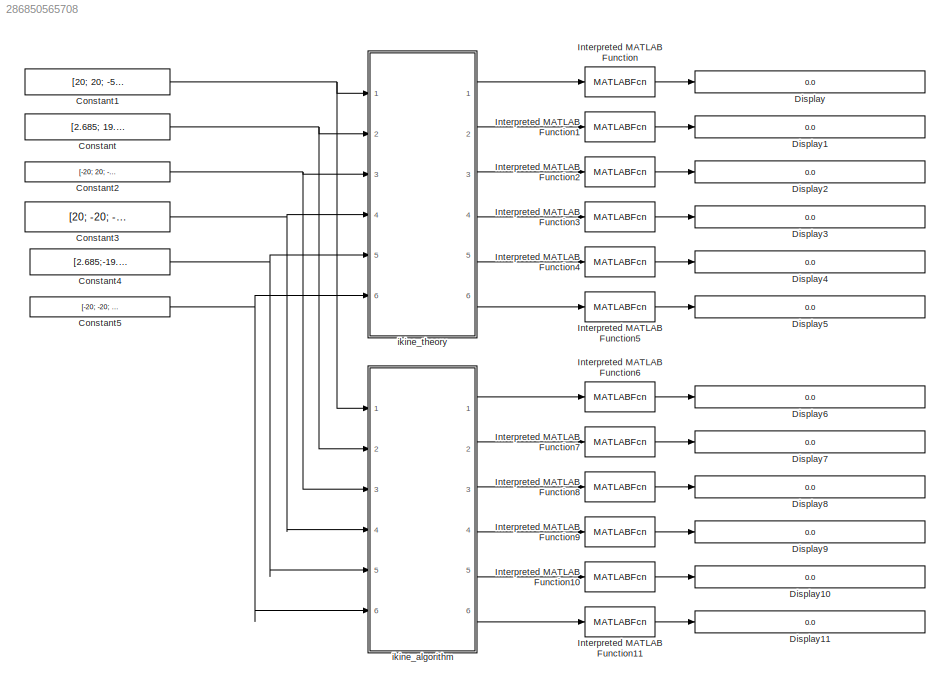
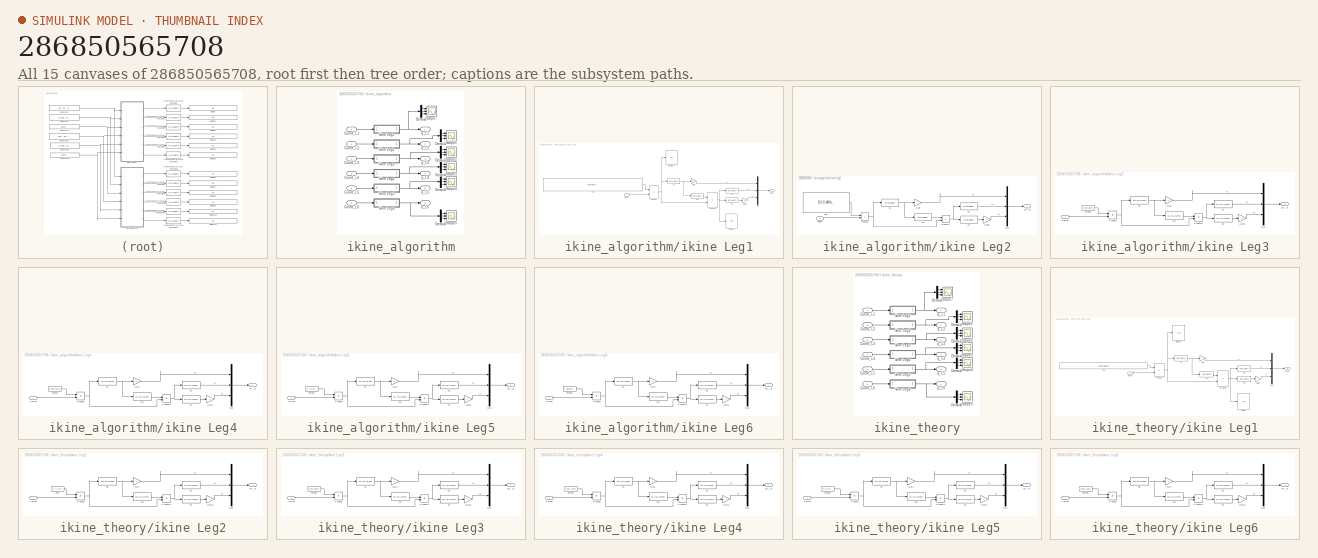
[diagram: thumbnail index - all 15 canvases of the model, root first then tree order]
MODEL slx_286850565708
KIND model
CONFIG AbsTol = auto
CONFIG EnableMultiTasking = on
CONFIG FixedStep = auto
CONFIG MaxStep = auto
CONFIG MinStep = auto
CONFIG RelTol = 1e-3
CONFIG SampleTimeConstraint = Unconstrained
CONFIG Solver = ode45
CONFIG SolverName = ode45
CONFIG StartTime = 0.0
CONFIG StopTime = 10.0
BLOCK [Constant] Constant
  Value = [2.685; 19.881; -10.46; 1]
  VectorParams1D = off
BLOCK [Constant] Constant1
  Value = [20; 20; -5; 1]
  VectorParams1D = off
BLOCK [Constant] Constant2
  Value = [-20; 20; -5; 1]
  VectorParams1D = off
BLOCK [Constant] Constant3
  Value = [20; -20; -5; 1]
  VectorParams1D = off
BLOCK [Constant] Constant4
  Value = [2.685;-19.881;-10.46;1]
  VectorParams1D = off
BLOCK [Constant] Constant5
  Value = [-20; -20; -5; 1]
  VectorParams1D = off
BLOCK [Display] Display
  Decimation = 1
  Ports = [1]
BLOCK [Display] Display1
  Decimation = 1
  Ports = [1]
BLOCK [Display] Display10
  Decimation = 1
  Ports = [1]
BLOCK [Display] Display11
  Decimation = 1
  Ports = [1]
BLOCK [Display] Display2
  Decimation = 1
  Ports = [1]
BLOCK [Display] Display3
  Decimation = 1
  Ports = [1]
BLOCK [Display] Display4
  Decimation = 1
  Ports = [1]
BLOCK [Display] Display5
  Decimation = 1
  Ports = [1]
BLOCK [Display] Display6
  Decimation = 1
  Ports = [1]
BLOCK [Display] Display7
  Decimation = 1
  Ports = [1]
BLOCK [Display] Display8
  Decimation = 1
  Ports = [1]
BLOCK [Display] Display9
  Decimation = 1
  Ports = [1]
BLOCK [MATLABFcn] Interpreted MATLAB Function
  Commented = through
  MATLABFcn = [u(1)*180/pi; u(2)*180/pi; u(3)*180/pi]
  Ports = [1, 1]
BLOCK [MATLABFcn] Interpreted MATLAB Function1
  Commented = through
  MATLABFcn = [u(1)*180/pi; u(2)*180/pi; u(3)*180/pi]
  Ports = [1, 1]
BLOCK [MATLABFcn] Interpreted MATLAB Function10
  Commented = through
  MATLABFcn = [u(1)*180/pi; u(2)*180/pi; u(3)*180/pi]
  Ports = [1, 1]
BLOCK [MATLABFcn] Interpreted MATLAB Function11
  Commented = through
  MATLABFcn = [u(1)*180/pi; u(2)*180/pi; u(3)*180/pi]
  Ports = [1, 1]
BLOCK [MATLABFcn] Interpreted MATLAB Function2
  Commented = through
  MATLABFcn = [u(1)*180/pi; u(2)*180/pi; u(3)*180/pi]
  Ports = [1, 1]
BLOCK [MATLABFcn] Interpreted MATLAB Function3
  Commented = through
  MATLABFcn = [u(1)*180/pi; u(2)*180/pi; u(3)*180/pi]
  Ports = [1, 1]
BLOCK [MATLABFcn] Interpreted MATLAB Function4
  Commented = through
  MATLABFcn = [u(1)*180/pi; u(2)*180/pi; u(3)*180/pi]
  Ports = [1, 1]
BLOCK [MATLABFcn] Interpreted MATLAB Function5
  Commented = through
  MATLABFcn = [u(1)*180/pi; u(2)*180/pi; u(3)*180/pi]
  Ports = [1, 1]
BLOCK [MATLABFcn] Interpreted MATLAB Function6
  Commented = through
  MATLABFcn = [u(1)*180/pi; u(2)*180/pi; u(3)*180/pi]
  Ports = [1, 1]
BLOCK [MATLABFcn] Interpreted MATLAB Function7
  Commented = through
  MATLABFcn = [u(1)*180/pi; u(2)*180/pi; u(3)*180/pi]
  Ports = [1, 1]
BLOCK [MATLABFcn] Interpreted MATLAB Function8
  Commented = through
  MATLABFcn = [u(1)*180/pi; u(2)*180/pi; u(3)*180/pi]
  Ports = [1, 1]
BLOCK [MATLABFcn] Interpreted MATLAB Function9
  Commented = through
  MATLABFcn = [u(1)*180/pi; u(2)*180/pi; u(3)*180/pi]
  Ports = [1, 1]
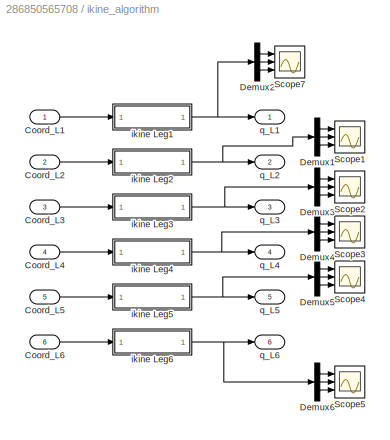
BLOCK [SubSystem] ikine_algorithm
  Ports = [6, 6]
  RequestExecContextInheritance = off
BLOCK [Inport] ikine_algorithm/Coord_L1
  IconDisplay = Port number
BLOCK [Inport] ikine_algorithm/Coord_L2
  IconDisplay = Port number
  Port = 2
BLOCK [Inport] ikine_algorithm/Coord_L3
  IconDisplay = Port number
  Port = 3
BLOCK [Inport] ikine_algorithm/Coord_L4
  IconDisplay = Port number
  Port = 4
BLOCK [Inport] ikine_algorithm/Coord_L5
  IconDisplay = Port number
  Port = 5
BLOCK [Inport] ikine_algorithm/Coord_L6
  IconDisplay = Port number
  Port = 6
BLOCK [Demux] ikine_algorithm/Demux1
  DisplayOption = bar
  Outputs = 3
  Ports = [1, 3]
BLOCK [Demux] ikine_algorithm/Demux2
  DisplayOption = bar
  Outputs = 3
  Ports = [1, 3]
BLOCK [Demux] ikine_algorithm/Demux3
  DisplayOption = bar
  Outputs = 3
  Ports = [1, 3]
BLOCK [Demux] ikine_algorithm/Demux4
  DisplayOption = bar
  Outputs = 3
  Ports = [1, 3]
BLOCK [Demux] ikine_algorithm/Demux5
  DisplayOption = bar
  Outputs = 3
  Ports = [1, 3]
BLOCK [Demux] ikine_algorithm/Demux6
  DisplayOption = bar
  Outputs = 3
  Ports = [1, 3]
BLOCK [Scope] ikine_algorithm/Scope1
  Floating = off
  NumInputPorts = 3
  Ports = [3]
  ScopeSpecificationString = C++SS(StrPVP('Location','[1, 48, 1921, 1039]'),StrPVP('Open','off'),MxPVP('AxesTitles',54,'struct(''axes1'',''%<SignalLabel>'',''axes2'',''%<SignalLabel>'',''axes3'',''%<SignalLabel>'')'),MxPVP('ScopeGraphics',57,'struct(''FigureColor'',''[0.831372549019608 0.815686274509804 0.784313725490196]'',''AxesColor'',''[1 1 1]'',''AxesTickColor'',''[0 0 0]'',''LineColors'',''[0 0 0;1 0 1;0 1 1;1 0 0;0 1 0...<+345ch>
BLOCK [Scope] ikine_algorithm/Scope2
  Floating = off
  NumInputPorts = 3
  Ports = [3]
  ScopeSpecificationString = C++SS(StrPVP('Location','[1, 48, 1921, 1039]'),StrPVP('Open','off'),MxPVP('AxesTitles',54,'struct(''axes1'',''%<SignalLabel>'',''axes2'',''%<SignalLabel>'',''axes3'',''%<SignalLabel>'')'),MxPVP('ScopeGraphics',57,'struct(''FigureColor'',''[0.831372549019608 0.815686274509804 0.784313725490196]'',''AxesColor'',''[1 1 1]'',''AxesTickColor'',''[0 0 0]'',''LineColors'',''[0 0 0;1 0 1;0 1 1;1 0 0;0 1 0...<+346ch>  <repeated x10 — deduplicated; at blocks: Scope2, Scope3, Scope4, Scope5, Scope7>
BLOCK [Scope] ikine_algorithm/Scope3
  Floating = off
  NumInputPorts = 3
  Ports = [3]
BLOCK [Scope] ikine_algorithm/Scope4
  Floating = off
  NumInputPorts = 3
  Ports = [3]
BLOCK [Scope] ikine_algorithm/Scope5
  Floating = off
  NumInputPorts = 3
  Ports = [3]
BLOCK [Scope] ikine_algorithm/Scope7
  Floating = off
  NumInputPorts = 3
  Ports = [3]
BLOCK [SubSystem] ikine_algorithm/ikine Leg1
  Ports = [1, 1]
  RequestExecContextInheritance = off
BLOCK [Display] ikine_algorithm/ikine Leg1/Display
  Decimation = 1
  Ports = [1]
BLOCK [Display] ikine_algorithm/ikine Leg1/Display1
  Decimation = 1
  Ports = [1]
BLOCK [Gain] ikine_algorithm/ikine Leg1/Gain
  Commented = through
  Gain = -1
  OutDataTypeStr = Inherit: Inherit via internal rule
  ParamDataTypeStr = Inherit: Inherit via internal rule
  SaturateOnIntegerOverflow = off
BLOCK [Gain] ikine_algorithm/ikine Leg1/Gain1
  Gain = -1
  OutDataTypeStr = Inherit: Inherit via internal rule
  ParamDataTypeStr = Inherit: Inherit via internal rule
  SaturateOnIntegerOverflow = off
BLOCK [Mux] ikine_algorithm/ikine Leg1/Mux
  DisplayOption = bar
  Inputs = 3
  Ports = [3, 1]
BLOCK [Inport] ikine_algorithm/ikine Leg1/PBLef
  IconDisplay = Port number
BLOCK [Product] ikine_algorithm/ikine Leg1/Product
  InputSameDT = off
  Multiplication = Matrix(*)
  OutDataTypeStr = Inherit: Inherit via internal rule
  Ports = [2, 1]
  RndMeth = Floor
  SaturateOnIntegerOverflow = off
BLOCK [Product] ikine_algorithm/ikine Leg1/Product1
  InputSameDT = off
  Multiplication = Matrix(*)
  OutDataTypeStr = Inherit: Inherit via internal rule
  Ports = [2, 1]
  RndMeth = Floor
  SaturateOnIntegerOverflow = off
BLOCK [MATLABFcn] ikine_algorithm/ikine Leg1/T10
  MATLABFcn = [cos(u) -sin(u) 0 0; sin(u) cos(u) 0 0; 0 0 1 d1; 0 0 0 1]
  Output1D = off
  OutputDimensions = [4;4]
  Ports = [1, 1]
BLOCK [Constant] ikine_algorithm/ikine Leg1/Tb0
  Value = [cos(pi/4) sin(pi/4) 0 (-sin(pi/4)*((bWs+bL)/2)); -sin(pi/4) cos(pi/4) 0 (-sin(pi/4)*((bWs-bL)/2)); 0 0 1 0; 0 0 0 1]
  VectorParams1D = off
BLOCK [MATLABFcn] ikine_algorithm/ikine Leg1/q1
  MATLABFcn = -atan2(u(2),u(1))
  Ports = [1, 1]
BLOCK [MATLABFcn] ikine_algorithm/ikine Leg1/q2
  MATLABFcn = acos((L2^2 + (u(1)-L1)^2 + (u(3)-d2)^2 - L3^2)/(2*L2*sqrt((u(1)-L1)^2+(u(3)-d2)^2)))-atan2(abs(u(3)-d2),(u(1)-L1))
  Ports = [1, 1]
BLOCK [MATLABFcn] ikine_algorithm/ikine Leg1/q3
  MATLABFcn = acos((L2^2 - (u(1)-L1)^2 - (u(3)-d2)^2 + L3^2)/(2*L2*L3))-pi/2
  Ports = [1, 1]
BLOCK [Outport] ikine_algorithm/ikine Leg1/q[1..3]
  IconDisplay = Port number
  VectorParamsAs1DForOutWhenUnconnected = off
BLOCK [SubSystem] ikine_algorithm/ikine Leg2
  Ports = [1, 1]
  RequestExecContextInheritance = off
BLOCK [Gain] ikine_algorithm/ikine Leg2/Gain
  Commented = through
  Gain = -1
  OutDataTypeStr = Inherit: Inherit via internal rule
  ParamDataTypeStr = Inherit: Inherit via internal rule
  SaturateOnIntegerOverflow = off
BLOCK [Gain] ikine_algorithm/ikine Leg2/Gain1
  Gain = -1
  OutDataTypeStr = Inherit: Inherit via internal rule
  ParamDataTypeStr = Inherit: Inherit via internal rule
  SaturateOnIntegerOverflow = off
BLOCK [Mux] ikine_algorithm/ikine Leg2/Mux
  DisplayOption = bar
  Inputs = 3
  Ports = [3, 1]
BLOCK [Inport] ikine_algorithm/ikine Leg2/PBLef
  IconDisplay = Port number
BLOCK [Product] ikine_algorithm/ikine Leg2/Product
  InputSameDT = off
  Multiplication = Matrix(*)
  OutDataTypeStr = Inherit: Inherit via internal rule
  Ports = [2, 1]
  RndMeth = Floor
  SaturateOnIntegerOverflow = off
BLOCK [Product] ikine_algorithm/ikine Leg2/Product1
  InputSameDT = off
  Multiplication = Matrix(*)
  OutDataTypeStr = Inherit: Inherit via internal rule
  Ports = [2, 1]
  RndMeth = Floor
  SaturateOnIntegerOverflow = off
BLOCK [MATLABFcn] ikine_algorithm/ikine Leg2/T10
  MATLABFcn = [cos(u) -sin(u) 0 0; sin(u) cos(u) 0 0; 0 0 1 d1; 0 0 0 1]
  Output1D = off
  OutputDimensions = [4;4]
  Ports = [1, 1]
BLOCK [Constant] ikine_algorithm/ikine Leg2/Tb0
  Value = [0 1 0 -bWb/2; -1 0 0 0; 0 0 1 0; 0 0 0 1]
  VectorParams1D = off
BLOCK [MATLABFcn] ikine_algorithm/ikine Leg2/q1
  MATLABFcn = -atan2(u(2),u(1))
  Ports = [1, 1]
BLOCK [MATLABFcn] ikine_algorithm/ikine Leg2/q2
  MATLABFcn = acos((L2^2 + (u(1)-L1)^2 + (u(3)-d2)^2 - L3^2)/(2*L2*sqrt((u(1)-L1)^2+(u(3)-d2)^2)))-atan2(abs(u(3)-d2),(u(1)-L1))
  Ports = [1, 1]
BLOCK [MATLABFcn] ikine_algorithm/ikine Leg2/q3
  MATLABFcn = acos((L2^2 - (u(1)-L1)^2 - (u(3)-d2)^2 + L3^2)/(2*L2*L3))-pi/2
  Ports = [1, 1]
BLOCK [Outport] ikine_algorithm/ikine Leg2/q[1..3]
  IconDisplay = Port number
  VectorParamsAs1DForOutWhenUnconnected = off
BLOCK [SubSystem] ikine_algorithm/ikine Leg3
  Ports = [1, 1]
  RequestExecContextInheritance = off
BLOCK [Gain] ikine_algorithm/ikine Leg3/Gain
  Commented = through
  Gain = -1
  OutDataTypeStr = Inherit: Inherit via internal rule
  ParamDataTypeStr = Inherit: Inherit via internal rule
  SaturateOnIntegerOverflow = off
BLOCK [Gain] ikine_algorithm/ikine Leg3/Gain1
  Gain = -1
  OutDataTypeStr = Inherit: Inherit via internal rule
  ParamDataTypeStr = Inherit: Inherit via internal rule
  SaturateOnIntegerOverflow = off
BLOCK [Mux] ikine_algorithm/ikine Leg3/Mux
  DisplayOption = bar
  Inputs = 3
  Ports = [3, 1]
BLOCK [Inport] ikine_algorithm/ikine Leg3/PBLef
  IconDisplay = Port number
BLOCK [Product] ikine_algorithm/ikine Leg3/Product
  InputSameDT = off
  Multiplication = Matrix(*)
  OutDataTypeStr = Inherit: Inherit via internal rule
  Ports = [2, 1]
  RndMeth = Floor
  SaturateOnIntegerOverflow = off
BLOCK [Product] ikine_algorithm/ikine Leg3/Product1
  InputSameDT = off
  Multiplication = Matrix(*)
  OutDataTypeStr = Inherit: Inherit via internal rule
  Ports = [2, 1]
  RndMeth = Floor
  SaturateOnIntegerOverflow = off
BLOCK [MATLABFcn] ikine_algorithm/ikine Leg3/T10
  MATLABFcn = [cos(u) -sin(u) 0 0; sin(u) cos(u) 0 0; 0 0 1 d1; 0 0 0 1]
  Output1D = off
  OutputDimensions = [4;4]
  Ports = [1, 1]
BLOCK [Constant] ikine_algorithm/ikine Leg3/Tbleg3
  Value = ([cos(135*pi/180) sin(135*pi/180) 0 -sin(pi/4)*(bWs+bL)/2; sin(-135*pi/180) cos(135*pi/180) 0 sin(pi/4)*(bWs-bL)/2; 0 0 1 0; 0 0 0 1])
  VectorParams1D = off
BLOCK [MATLABFcn] ikine_algorithm/ikine Leg3/q1
  MATLABFcn = -atan2(u(2),u(1))
  Ports = [1, 1]
BLOCK [MATLABFcn] ikine_algorithm/ikine Leg3/q2
  MATLABFcn = acos((L2^2 + (u(1)-L1)^2 + (u(3)-d2)^2 - L3^2)/(2*L2*sqrt((u(1)-L1)^2+(u(3)-d2)^2)))-atan2(abs(u(3)-d2),(u(1)-L1))
  Ports = [1, 1]
BLOCK [MATLABFcn] ikine_algorithm/ikine Leg3/q3
  MATLABFcn = acos((L2^2 - (u(1)-L1)^2 - (u(3)-d2)^2 + L3^2)/(2*L2*L3))-pi/2
  Ports = [1, 1]
BLOCK [Outport] ikine_algorithm/ikine Leg3/q[1..3]
  IconDisplay = Port number
  VectorParamsAs1DForOutWhenUnconnected = off
BLOCK [SubSystem] ikine_algorithm/ikine Leg4
  Ports = [1, 1]
  RequestExecContextInheritance = off
BLOCK [Gain] ikine_algorithm/ikine Leg4/Gain
  Gain = -1
  OutDataTypeStr = Inherit: Inherit via internal rule
  ParamDataTypeStr = Inherit: Inherit via internal rule
  SaturateOnIntegerOverflow = off
BLOCK [Gain] ikine_algorithm/ikine Leg4/Gain1
  Gain = -1
  OutDataTypeStr = Inherit: Inherit via internal rule
  ParamDataTypeStr = Inherit: Inherit via internal rule
  SaturateOnIntegerOverflow = off
BLOCK [Mux] ikine_algorithm/ikine Leg4/Mux
  DisplayOption = bar
  Inputs = 3
  Ports = [3, 1]
BLOCK [Inport] ikine_algorithm/ikine Leg4/PBLef
  IconDisplay = Port number
BLOCK [Product] ikine_algorithm/ikine Leg4/Product
  InputSameDT = off
  Multiplication = Matrix(*)
  OutDataTypeStr = Inherit: Inherit via internal rule
  Ports = [2, 1]
  RndMeth = Floor
  SaturateOnIntegerOverflow = off
BLOCK [Product] ikine_algorithm/ikine Leg4/Product1
  InputSameDT = off
  Multiplication = Matrix(*)
  OutDataTypeStr = Inherit: Inherit via internal rule
  Ports = [2, 1]
  RndMeth = Floor
  SaturateOnIntegerOverflow = off
BLOCK [MATLABFcn] ikine_algorithm/ikine Leg4/T10
  MATLABFcn = [cos(u) -sin(u) 0 0; sin(u) cos(u) 0 0; 0 0 1 d1; 0 0 0 1]
  Output1D = off
  OutputDimensions = [4;4]
  Ports = [1, 1]
BLOCK [Constant] ikine_algorithm/ikine Leg4/Tbleg4
  Value = ([cos(45*pi/180) -sin(45*pi/180) 0 -sin(pi/4)*(bWs+bL)/2; sin(45*pi/180) cos(45*pi/180) 0 sin(pi/4)*(bWs-bL)/2; 0 0 1 0; 0 0 0 1])
  VectorParams1D = off
BLOCK [MATLABFcn] ikine_algorithm/ikine Leg4/q1
  MATLABFcn = -atan2(u(2),u(1))
  Ports = [1, 1]
BLOCK [MATLABFcn] ikine_algorithm/ikine Leg4/q2
  MATLABFcn = acos((L2^2 + (u(1)-L1)^2 + (u(3)-d2)^2 - L3^2)/(2*L2*sqrt((u(1)-L1)^2+(u(3)-d2)^2)))-atan2(abs(u(3)-d2),(u(1)-L1))
  Ports = [1, 1]
BLOCK [MATLABFcn] ikine_algorithm/ikine Leg4/q3
  MATLABFcn = acos((L2^2 - (u(1)-L1)^2 - (u(3)-d2)^2 + L3^2)/(2*L2*L3))-pi/2
  Ports = [1, 1]
BLOCK [Outport] ikine_algorithm/ikine Leg4/q[1..3]
  IconDisplay = Port number
  VectorParamsAs1DForOutWhenUnconnected = off
BLOCK [SubSystem] ikine_algorithm/ikine Leg5
  Ports = [1, 1]
  RequestExecContextInheritance = off
BLOCK [Gain] ikine_algorithm/ikine Leg5/Gain
  Gain = -1
  OutDataTypeStr = Inherit: Inherit via internal rule
  ParamDataTypeStr = Inherit: Inherit via internal rule
  SaturateOnIntegerOverflow = off
BLOCK [Gain] ikine_algorithm/ikine Leg5/Gain1
  Gain = -1
  OutDataTypeStr = Inherit: Inherit via internal rule
  ParamDataTypeStr = Inherit: Inherit via internal rule
  SaturateOnIntegerOverflow = off
BLOCK [Mux] ikine_algorithm/ikine Leg5/Mux
  DisplayOption = bar
  Inputs = 3
  Ports = [3, 1]
BLOCK [Inport] ikine_algorithm/ikine Leg5/PBLef
  IconDisplay = Port number
BLOCK [Product] ikine_algorithm/ikine Leg5/Product
  InputSameDT = off
  Multiplication = Matrix(*)
  OutDataTypeStr = Inherit: Inherit via internal rule
  Ports = [2, 1]
  RndMeth = Floor
  SaturateOnIntegerOverflow = off
BLOCK [Product] ikine_algorithm/ikine Leg5/Product1
  InputSameDT = off
  Multiplication = Matrix(*)
  OutDataTypeStr = Inherit: Inherit via internal rule
  Ports = [2, 1]
  RndMeth = Floor
  SaturateOnIntegerOverflow = off
BLOCK [MATLABFcn] ikine_algorithm/ikine Leg5/T10
  MATLABFcn = [cos(u) -sin(u) 0 0; sin(u) cos(u) 0 0; 0 0 1 d1; 0 0 0 1]
  Output1D = off
  OutputDimensions = [4;4]
  Ports = [1, 1]
BLOCK [Constant] ikine_algorithm/ikine Leg5/Tbleg1
  Value = ([0 1 0 0; -1 0 0 -bWb/2; 0 0 1 0; 0 0 0 1])^-1
  VectorParams1D = off
BLOCK [MATLABFcn] ikine_algorithm/ikine Leg5/q1
  MATLABFcn = -atan2(u(2),u(1))
  Ports = [1, 1]
BLOCK [MATLABFcn] ikine_algorithm/ikine Leg5/q2
  MATLABFcn = acos((L2^2 + (u(1)-L1)^2 + (u(3)-d2)^2 - L3^2)/(2*L2*sqrt((u(1)-L1)^2+(u(3)-d2)^2)))-atan2(abs(u(3)-d2),(u(1)-L1))
  Ports = [1, 1]
BLOCK [MATLABFcn] ikine_algorithm/ikine Leg5/q3
  MATLABFcn = acos((L2^2 - (u(1)-L1)^2 - (u(3)-d2)^2 + L3^2)/(2*L2*L3))-pi/2
  Ports = [1, 1]
BLOCK [Outport] ikine_algorithm/ikine Leg5/q[1..3]
  IconDisplay = Port number
  VectorParamsAs1DForOutWhenUnconnected = off
BLOCK [SubSystem] ikine_algorithm/ikine Leg6
  Ports = [1, 1]
  RequestExecContextInheritance = off
BLOCK [Gain] ikine_algorithm/ikine Leg6/Gain
  Gain = -1
  OutDataTypeStr = Inherit: Inherit via internal rule
  ParamDataTypeStr = Inherit: Inherit via internal rule
  SaturateOnIntegerOverflow = off
BLOCK [Gain] ikine_algorithm/ikine Leg6/Gain1
  Gain = -1
  OutDataTypeStr = Inherit: Inherit via internal rule
  ParamDataTypeStr = Inherit: Inherit via internal rule
  SaturateOnIntegerOverflow = off
BLOCK [Mux] ikine_algorithm/ikine Leg6/Mux
  DisplayOption = bar
  Inputs = 3
  Ports = [3, 1]
BLOCK [Inport] ikine_algorithm/ikine Leg6/PBLef
  IconDisplay = Port number
BLOCK [Product] ikine_algorithm/ikine Leg6/Product
  InputSameDT = off
  Multiplication = Matrix(*)
  OutDataTypeStr = Inherit: Inherit via internal rule
  Ports = [2, 1]
  RndMeth = Floor
  SaturateOnIntegerOverflow = off
BLOCK [Product] ikine_algorithm/ikine Leg6/Product1
  InputSameDT = off
  Multiplication = Matrix(*)
  OutDataTypeStr = Inherit: Inherit via internal rule
  Ports = [2, 1]
  RndMeth = Floor
  SaturateOnIntegerOverflow = off
BLOCK [MATLABFcn] ikine_algorithm/ikine Leg6/T10
  MATLABFcn = [cos(u) -sin(u) 0 0; sin(u) cos(u) 0 0; 0 0 1 d1; 0 0 0 1]
  Output1D = off
  OutputDimensions = [4;4]
  Ports = [1, 1]
BLOCK [Constant] ikine_algorithm/ikine Leg6/Tbleg2
  Value = [-sin(pi/4) -sin(pi/4) 0 -sin(pi/4)*(bWs+bL)/2; sin(pi/4) -sin(pi/4) 0 -sin(pi/4)*(bWs-bL)/2; 0 0 1 0; 0 0 0 1]
  VectorParams1D = off
BLOCK [MATLABFcn] ikine_algorithm/ikine Leg6/q1
  MATLABFcn = -atan2(u(2),u(1))
  Ports = [1, 1]
BLOCK [MATLABFcn] ikine_algorithm/ikine Leg6/q2
  MATLABFcn = acos((L2^2 + (u(1)-L1)^2 + (u(3)-d2)^2 - L3^2)/(2*L2*sqrt((u(1)-L1)^2+(u(3)-d2)^2)))-atan2(abs(u(3)-d2),(u(1)-L1))
  Ports = [1, 1]
BLOCK [MATLABFcn] ikine_algorithm/ikine Leg6/q3
  MATLABFcn = acos((L2^2 - (u(1)-L1)^2 - (u(3)-d2)^2 + L3^2)/(2*L2*L3))-pi/2
  Ports = [1, 1]
BLOCK [Outport] ikine_algorithm/ikine Leg6/q[1..3]
  IconDisplay = Port number
  VectorParamsAs1DForOutWhenUnconnected = off
BLOCK [Outport] ikine_algorithm/q_L1
  IconDisplay = Port number
  VectorParamsAs1DForOutWhenUnconnected = off
BLOCK [Outport] ikine_algorithm/q_L2
  IconDisplay = Port number
  Port = 2
  VectorParamsAs1DForOutWhenUnconnected = off
BLOCK [Outport] ikine_algorithm/q_L3
  IconDisplay = Port number
  Port = 3
  VectorParamsAs1DForOutWhenUnconnected = off
BLOCK [Outport] ikine_algorithm/q_L4
  IconDisplay = Port number
  Port = 4
  VectorParamsAs1DForOutWhenUnconnected = off
BLOCK [Outport] ikine_algorithm/q_L5
  IconDisplay = Port number
  Port = 5
  VectorParamsAs1DForOutWhenUnconnected = off
BLOCK [Outport] ikine_algorithm/q_L6
  IconDisplay = Port number
  Port = 6
  VectorParamsAs1DForOutWhenUnconnected = off
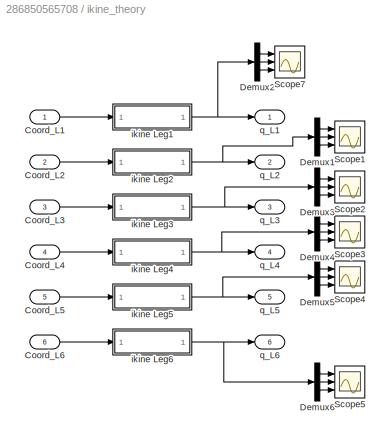
BLOCK [SubSystem] ikine_theory
  Ports = [6, 6]
  RequestExecContextInheritance = off
BLOCK [Inport] ikine_theory/Coord_L1
  IconDisplay = Port number
BLOCK [Inport] ikine_theory/Coord_L2
  IconDisplay = Port number
  Port = 2
BLOCK [Inport] ikine_theory/Coord_L3
  IconDisplay = Port number
  Port = 3
BLOCK [Inport] ikine_theory/Coord_L4
  IconDisplay = Port number
  Port = 4
BLOCK [Inport] ikine_theory/Coord_L5
  IconDisplay = Port number
  Port = 5
BLOCK [Inport] ikine_theory/Coord_L6
  IconDisplay = Port number
  Port = 6
BLOCK [Demux] ikine_theory/Demux1
  DisplayOption = bar
  Outputs = 3
  Ports = [1, 3]
BLOCK [Demux] ikine_theory/Demux2
  DisplayOption = bar
  Outputs = 3
  Ports = [1, 3]
BLOCK [Demux] ikine_theory/Demux3
  DisplayOption = bar
  Outputs = 3
  Ports = [1, 3]
BLOCK [Demux] ikine_theory/Demux4
  DisplayOption = bar
  Outputs = 3
  Ports = [1, 3]
BLOCK [Demux] ikine_theory/Demux5
  DisplayOption = bar
  Outputs = 3
  Ports = [1, 3]
BLOCK [Demux] ikine_theory/Demux6
  DisplayOption = bar
  Outputs = 3
  Ports = [1, 3]
BLOCK [Scope] ikine_theory/Scope1
  Floating = off
  NumInputPorts = 3
  Ports = [3]
  ScopeSpecificationString = C++SS(StrPVP('Location','[1, 48, 1921, 1039]'),StrPVP('Open','off'),MxPVP('AxesTitles',54,'struct(''axes1'',''%<SignalLabel>'',''axes2'',''%<SignalLabel>'',''axes3'',''%<SignalLabel>'')'),MxPVP('ScopeGraphics',57,'struct(''FigureColor'',''[0.831372549019608 0.815686274509804 0.784313725490196]'',''AxesColor'',''[1 1 1]'',''AxesTickColor'',''[0 0 0]'',''LineColors'',''[0 0 0;1 0 1;0 1 1;1 0 0;0 1 0...<+345ch>
BLOCK [Scope] ikine_theory/Scope2
  Floating = off
  NumInputPorts = 3
  Ports = [3]
BLOCK [Scope] ikine_theory/Scope3
  Floating = off
  NumInputPorts = 3
  Ports = [3]
BLOCK [Scope] ikine_theory/Scope4
  Floating = off
  NumInputPorts = 3
  Ports = [3]
BLOCK [Scope] ikine_theory/Scope5
  Floating = off
  NumInputPorts = 3
  Ports = [3]
BLOCK [Scope] ikine_theory/Scope7
  Floating = off
  NumInputPorts = 3
  Ports = [3]
BLOCK [SubSystem] ikine_theory/ikine Leg1
  Ports = [1, 1]
  RequestExecContextInheritance = off
BLOCK [Display] ikine_theory/ikine Leg1/Display
  Decimation = 1
  Ports = [1]
BLOCK [Display] ikine_theory/ikine Leg1/Display1
  Decimation = 1
  Ports = [1]
BLOCK [Gain] ikine_theory/ikine Leg1/Gain
  Gain = -1
  OutDataTypeStr = Inherit: Inherit via internal rule
  ParamDataTypeStr = Inherit: Inherit via internal rule
  SaturateOnIntegerOverflow = off
BLOCK [Gain] ikine_theory/ikine Leg1/Gain1
  Gain = -1
  OutDataTypeStr = Inherit: Inherit via internal rule
  ParamDataTypeStr = Inherit: Inherit via internal rule
  SaturateOnIntegerOverflow = off
BLOCK [Mux] ikine_theory/ikine Leg1/Mux
  DisplayOption = bar
  Inputs = 3
  Ports = [3, 1]
BLOCK [Inport] ikine_theory/ikine Leg1/PBLef
  IconDisplay = Port number
BLOCK [Product] ikine_theory/ikine Leg1/Product
  InputSameDT = off
  Multiplication = Matrix(*)
  OutDataTypeStr = Inherit: Inherit via internal rule
  Ports = [2, 1]
  RndMeth = Floor
  SaturateOnIntegerOverflow = off
BLOCK [Product] ikine_theory/ikine Leg1/Product1
  InputSameDT = off
  Multiplication = Matrix(*)
  OutDataTypeStr = Inherit: Inherit via internal rule
  Ports = [2, 1]
  RndMeth = Floor
  SaturateOnIntegerOverflow = off
BLOCK [MATLABFcn] ikine_theory/ikine Leg1/T10
  MATLABFcn = [cos(u) -sin(u) 0 0; sin(u) cos(u) 0 0; 0 0 1 d1; 0 0 0 1]
  Output1D = off
  Ports = [1, 1]
BLOCK [Constant] ikine_theory/ikine Leg1/Tb0
  Value = ([cos(45*pi/180) -sin(45*pi/180) 0 bL/2; sin(45*pi/180) cos(45*pi/180) 0 bWs/2; 0 0 1 0; 0 0 0 1])^-1
  VectorParams1D = off
BLOCK [MATLABFcn] ikine_theory/ikine Leg1/q1
  MATLABFcn = -atan2(u(2),u(1))
  Ports = [1, 1]
BLOCK [MATLABFcn] ikine_theory/ikine Leg1/q2
  MATLABFcn = acos((L2^2 + (u(1)-L1)^2 + (u(3)-d2)^2 - L3^2)/(2*L2*sqrt((u(1)-L1)^2+(u(3)-d2)^2)))-atan2(abs(u(3)-d2),(u(1)-L1))
  Ports = [1, 1]
BLOCK [MATLABFcn] ikine_theory/ikine Leg1/q3
  MATLABFcn = acos((L2^2 - (u(1)-L1)^2 - (u(3)-d2)^2 + L3^2)/(2*L2*L3))-pi/2
  Ports = [1, 1]
BLOCK [Outport] ikine_theory/ikine Leg1/q[1..3]
  IconDisplay = Port number
  VectorParamsAs1DForOutWhenUnconnected = off
BLOCK [SubSystem] ikine_theory/ikine Leg2
  Ports = [1, 1]
  RequestExecContextInheritance = off
BLOCK [Gain] ikine_theory/ikine Leg2/Gain
  Gain = -1
  OutDataTypeStr = Inherit: Inherit via internal rule
  ParamDataTypeStr = Inherit: Inherit via internal rule
  SaturateOnIntegerOverflow = off
BLOCK [Gain] ikine_theory/ikine Leg2/Gain1
  Gain = -1
  OutDataTypeStr = Inherit: Inherit via internal rule
  ParamDataTypeStr = Inherit: Inherit via internal rule
  SaturateOnIntegerOverflow = off
BLOCK [Mux] ikine_theory/ikine Leg2/Mux
  DisplayOption = bar
  Inputs = 3
  Ports = [3, 1]
BLOCK [Inport] ikine_theory/ikine Leg2/PBLef
  IconDisplay = Port number
BLOCK [Product] ikine_theory/ikine Leg2/Product
  InputSameDT = off
  Multiplication = Matrix(*)
  OutDataTypeStr = Inherit: Inherit via internal rule
  Ports = [2, 1]
  RndMeth = Floor
  SaturateOnIntegerOverflow = off
BLOCK [Product] ikine_theory/ikine Leg2/Product1
  InputSameDT = off
  Multiplication = Matrix(*)
  OutDataTypeStr = Inherit: Inherit via internal rule
  Ports = [2, 1]
  RndMeth = Floor
  SaturateOnIntegerOverflow = off
BLOCK [MATLABFcn] ikine_theory/ikine Leg2/T10
  MATLABFcn = [cos(u) -sin(u) 0 0; sin(u) cos(u) 0 0; 0 0 1 d1; 0 0 0 1]
  Output1D = off
  OutputDimensions = [4;4]
  Ports = [1, 1]
BLOCK [Constant] ikine_theory/ikine Leg2/Tb0
  Value = ([0 -1 0 0; 1 0 0 bWb/2; 0 0 1 0; 0 0 0 1])^-1
  VectorParams1D = off
BLOCK [MATLABFcn] ikine_theory/ikine Leg2/q1
  MATLABFcn = -atan2(u(2),u(1))
  Ports = [1, 1]
BLOCK [MATLABFcn] ikine_theory/ikine Leg2/q2
  MATLABFcn = acos((L2^2 + (u(1)-L1)^2 + (u(3)-d2)^2 - L3^2)/(2*L2*sqrt((u(1)-L1)^2+(u(3)-d2)^2)))-atan2(abs(u(3)-d2),(u(1)-L1))
  Ports = [1, 1]
BLOCK [MATLABFcn] ikine_theory/ikine Leg2/q3
  MATLABFcn = acos((L2^2 - (u(1)-L1)^2 - (u(3)-d2)^2 + L3^2)/(2*L2*L3))-pi/2
  Ports = [1, 1]
BLOCK [Outport] ikine_theory/ikine Leg2/q[1..3]
  IconDisplay = Port number
  VectorParamsAs1DForOutWhenUnconnected = off
BLOCK [SubSystem] ikine_theory/ikine Leg3
  Ports = [1, 1]
  RequestExecContextInheritance = off
BLOCK [Gain] ikine_theory/ikine Leg3/Gain
  Gain = -1
  OutDataTypeStr = Inherit: Inherit via internal rule
  ParamDataTypeStr = Inherit: Inherit via internal rule
  SaturateOnIntegerOverflow = off
BLOCK [Gain] ikine_theory/ikine Leg3/Gain1
  Gain = -1
  OutDataTypeStr = Inherit: Inherit via internal rule
  ParamDataTypeStr = Inherit: Inherit via internal rule
  SaturateOnIntegerOverflow = off
BLOCK [Mux] ikine_theory/ikine Leg3/Mux
  DisplayOption = bar
  Inputs = 3
  Ports = [3, 1]
BLOCK [Inport] ikine_theory/ikine Leg3/PBLef
  IconDisplay = Port number
BLOCK [Product] ikine_theory/ikine Leg3/Product
  InputSameDT = off
  Multiplication = Matrix(*)
  OutDataTypeStr = Inherit: Inherit via internal rule
  Ports = [2, 1]
  RndMeth = Floor
  SaturateOnIntegerOverflow = off
BLOCK [Product] ikine_theory/ikine Leg3/Product1
  InputSameDT = off
  Multiplication = Matrix(*)
  OutDataTypeStr = Inherit: Inherit via internal rule
  Ports = [2, 1]
  RndMeth = Floor
  SaturateOnIntegerOverflow = off
BLOCK [MATLABFcn] ikine_theory/ikine Leg3/T10
  MATLABFcn = [cos(u) -sin(u) 0 0; sin(u) cos(u) 0 0; 0 0 1 d1; 0 0 0 1]
  Output1D = off
  OutputDimensions = [4;4]
  Ports = [1, 1]
BLOCK [Constant] ikine_theory/ikine Leg3/Tbleg3
  Value = ([cos(135*pi/180) -sin(135*pi/180) 0 -bL/2; sin(135*pi/180) cos(135*pi/180) 0 bWs/2; 0 0 1 0; 0 0 0 1])^-1
  VectorParams1D = off
BLOCK [MATLABFcn] ikine_theory/ikine Leg3/q1
  MATLABFcn = -atan2(u(2),u(1))
  Ports = [1, 1]
BLOCK [MATLABFcn] ikine_theory/ikine Leg3/q2
  MATLABFcn = acos((L2^2 + (u(1)-L1)^2 + (u(3)-d2)^2 - L3^2)/(2*L2*sqrt((u(1)-L1)^2+(u(3)-d2)^2)))-atan2(abs(u(3)-d2),(u(1)-L1))
  Ports = [1, 1]
BLOCK [MATLABFcn] ikine_theory/ikine Leg3/q3
  MATLABFcn = acos((L2^2 - (u(1)-L1)^2 - (u(3)-d2)^2 + L3^2)/(2*L2*L3))-pi/2
  Ports = [1, 1]
BLOCK [Outport] ikine_theory/ikine Leg3/q[1..3]
  IconDisplay = Port number
  VectorParamsAs1DForOutWhenUnconnected = off
BLOCK [SubSystem] ikine_theory/ikine Leg4
  Ports = [1, 1]
  RequestExecContextInheritance = off
BLOCK [Gain] ikine_theory/ikine Leg4/Gain
  Gain = -1
  OutDataTypeStr = Inherit: Inherit via internal rule
  ParamDataTypeStr = Inherit: Inherit via internal rule
  SaturateOnIntegerOverflow = off
BLOCK [Gain] ikine_theory/ikine Leg4/Gain1
  Gain = -1
  OutDataTypeStr = Inherit: Inherit via internal rule
  ParamDataTypeStr = Inherit: Inherit via internal rule
  SaturateOnIntegerOverflow = off
BLOCK [Mux] ikine_theory/ikine Leg4/Mux
  DisplayOption = bar
  Inputs = 3
  Ports = [3, 1]
BLOCK [Inport] ikine_theory/ikine Leg4/PBLef
  IconDisplay = Port number
BLOCK [Product] ikine_theory/ikine Leg4/Product
  InputSameDT = off
  Multiplication = Matrix(*)
  OutDataTypeStr = Inherit: Inherit via internal rule
  Ports = [2, 1]
  RndMeth = Floor
  SaturateOnIntegerOverflow = off
BLOCK [Product] ikine_theory/ikine Leg4/Product1
  InputSameDT = off
  Multiplication = Matrix(*)
  OutDataTypeStr = Inherit: Inherit via internal rule
  Ports = [2, 1]
  RndMeth = Floor
  SaturateOnIntegerOverflow = off
BLOCK [MATLABFcn] ikine_theory/ikine Leg4/T10
  MATLABFcn = [cos(u) -sin(u) 0 0; sin(u) cos(u) 0 0; 0 0 1 d1; 0 0 0 1]
  Output1D = off
  OutputDimensions = [4;4]
  Ports = [1, 1]
BLOCK [Constant] ikine_theory/ikine Leg4/Tbleg4
  Value = ([cos(-45*pi/180) -sin(-45*pi/180) 0 bL/2; sin(-45*pi/180) cos(-45*pi/180) 0 -bWs/2; 0 0 1 0; 0 0 0 1])^-1
  VectorParams1D = off
BLOCK [MATLABFcn] ikine_theory/ikine Leg4/q1
  MATLABFcn = -atan2(u(2),u(1))
  Ports = [1, 1]
BLOCK [MATLABFcn] ikine_theory/ikine Leg4/q2
  MATLABFcn = acos((L2^2 + (u(1)-L1)^2 + (u(3)-d2)^2 - L3^2)/(2*L2*sqrt((u(1)-L1)^2+(u(3)-d2)^2)))-atan2(abs(u(3)-d2),(u(1)-L1))
  Ports = [1, 1]
BLOCK [MATLABFcn] ikine_theory/ikine Leg4/q3
  MATLABFcn = acos((L2^2 - (u(1)-L1)^2 - (u(3)-d2)^2 + L3^2)/(2*L2*L3))-pi/2
  Ports = [1, 1]
BLOCK [Outport] ikine_theory/ikine Leg4/q[1..3]
  IconDisplay = Port number
  VectorParamsAs1DForOutWhenUnconnected = off
BLOCK [SubSystem] ikine_theory/ikine Leg5
  Ports = [1, 1]
  RequestExecContextInheritance = off
BLOCK [Gain] ikine_theory/ikine Leg5/Gain
  Gain = -1
  OutDataTypeStr = Inherit: Inherit via internal rule
  ParamDataTypeStr = Inherit: Inherit via internal rule
  SaturateOnIntegerOverflow = off
BLOCK [Gain] ikine_theory/ikine Leg5/Gain1
  Gain = -1
  OutDataTypeStr = Inherit: Inherit via internal rule
  ParamDataTypeStr = Inherit: Inherit via internal rule
  SaturateOnIntegerOverflow = off
BLOCK [Mux] ikine_theory/ikine Leg5/Mux
  DisplayOption = bar
  Inputs = 3
  Ports = [3, 1]
BLOCK [Inport] ikine_theory/ikine Leg5/PBLef
  IconDisplay = Port number
BLOCK [Product] ikine_theory/ikine Leg5/Product
  InputSameDT = off
  Multiplication = Matrix(*)
  OutDataTypeStr = Inherit: Inherit via internal rule
  Ports = [2, 1]
  RndMeth = Floor
  SaturateOnIntegerOverflow = off
BLOCK [Product] ikine_theory/ikine Leg5/Product1
  InputSameDT = off
  Multiplication = Matrix(*)
  OutDataTypeStr = Inherit: Inherit via internal rule
  Ports = [2, 1]
  RndMeth = Floor
  SaturateOnIntegerOverflow = off
BLOCK [MATLABFcn] ikine_theory/ikine Leg5/T10
  MATLABFcn = [cos(u) -sin(u) 0 0; sin(u) cos(u) 0 0; 0 0 1 d1; 0 0 0 1]
  Output1D = off
  OutputDimensions = [4;4]
  Ports = [1, 1]
BLOCK [Constant] ikine_theory/ikine Leg5/Tbleg1
  Value = ([0 1 0 0; -1 0 0 -bWb/2; 0 0 1 0; 0 0 0 1])^-1
  VectorParams1D = off
BLOCK [MATLABFcn] ikine_theory/ikine Leg5/q1
  MATLABFcn = -atan2(u(2),u(1))
  Ports = [1, 1]
BLOCK [MATLABFcn] ikine_theory/ikine Leg5/q2
  MATLABFcn = acos((L2^2 + (u(1)-L1)^2 + (u(3)-d2)^2 - L3^2)/(2*L2*sqrt((u(1)-L1)^2+(u(3)-d2)^2)))-atan2(abs(u(3)-d2),(u(1)-L1))
  Ports = [1, 1]
BLOCK [MATLABFcn] ikine_theory/ikine Leg5/q3
  MATLABFcn = acos((L2^2 - (u(1)-L1)^2 - (u(3)-d2)^2 + L3^2)/(2*L2*L3))-pi/2
  Ports = [1, 1]
BLOCK [Outport] ikine_theory/ikine Leg5/q[1..3]
  IconDisplay = Port number
  VectorParamsAs1DForOutWhenUnconnected = off
BLOCK [SubSystem] ikine_theory/ikine Leg6
  Ports = [1, 1]
  RequestExecContextInheritance = off
BLOCK [Gain] ikine_theory/ikine Leg6/Gain
  Gain = -1
  OutDataTypeStr = Inherit: Inherit via internal rule
  ParamDataTypeStr = Inherit: Inherit via internal rule
  SaturateOnIntegerOverflow = off
BLOCK [Gain] ikine_theory/ikine Leg6/Gain1
  Gain = -1
  OutDataTypeStr = Inherit: Inherit via internal rule
  ParamDataTypeStr = Inherit: Inherit via internal rule
  SaturateOnIntegerOverflow = off
BLOCK [Mux] ikine_theory/ikine Leg6/Mux
  DisplayOption = bar
  Inputs = 3
  Ports = [3, 1]
BLOCK [Inport] ikine_theory/ikine Leg6/PBLef
  IconDisplay = Port number
BLOCK [Product] ikine_theory/ikine Leg6/Product
  InputSameDT = off
  Multiplication = Matrix(*)
  OutDataTypeStr = Inherit: Inherit via internal rule
  Ports = [2, 1]
  RndMeth = Floor
  SaturateOnIntegerOverflow = off
BLOCK [Product] ikine_theory/ikine Leg6/Product1
  InputSameDT = off
  Multiplication = Matrix(*)
  OutDataTypeStr = Inherit: Inherit via internal rule
  Ports = [2, 1]
  RndMeth = Floor
  SaturateOnIntegerOverflow = off
BLOCK [MATLABFcn] ikine_theory/ikine Leg6/T10
  MATLABFcn = [cos(u) -sin(u) 0 0; sin(u) cos(u) 0 0; 0 0 1 d1; 0 0 0 1]
  Output1D = off
  OutputDimensions = [4;4]
  Ports = [1, 1]
BLOCK [Constant] ikine_theory/ikine Leg6/Tbleg2
  Value = ([cos(-135*pi/180) -sin(-135*pi/180) 0 -bL/2; sin(-135*pi/180) cos(-135*pi/180) 0 -bWs/2; 0 0 1 0; 0 0 0 1])^-1
  VectorParams1D = off
BLOCK [MATLABFcn] ikine_theory/ikine Leg6/q1
  MATLABFcn = -atan2(u(2),u(1))
  Ports = [1, 1]
BLOCK [MATLABFcn] ikine_theory/ikine Leg6/q2
  MATLABFcn = acos((L2^2 + (u(1)-L1)^2 + (u(3)-d2)^2 - L3^2)/(2*L2*sqrt((u(1)-L1)^2+(u(3)-d2)^2)))-atan2(abs(u(3)-d2),(u(1)-L1))
  Ports = [1, 1]
BLOCK [MATLABFcn] ikine_theory/ikine Leg6/q3
  MATLABFcn = acos((L2^2 - (u(1)-L1)^2 - (u(3)-d2)^2 + L3^2)/(2*L2*L3))-pi/2
  Ports = [1, 1]
BLOCK [Outport] ikine_theory/ikine Leg6/q[1..3]
  IconDisplay = Port number
  VectorParamsAs1DForOutWhenUnconnected = off
BLOCK [Outport] ikine_theory/q_L1
  IconDisplay = Port number
  VectorParamsAs1DForOutWhenUnconnected = off
BLOCK [Outport] ikine_theory/q_L2
  IconDisplay = Port number
  Port = 2
  VectorParamsAs1DForOutWhenUnconnected = off
BLOCK [Outport] ikine_theory/q_L3
  IconDisplay = Port number
  Port = 3
  VectorParamsAs1DForOutWhenUnconnected = off
BLOCK [Outport] ikine_theory/q_L4
  IconDisplay = Port number
  Port = 4
  VectorParamsAs1DForOutWhenUnconnected = off
BLOCK [Outport] ikine_theory/q_L5
  IconDisplay = Port number
  Port = 5
  VectorParamsAs1DForOutWhenUnconnected = off
BLOCK [Outport] ikine_theory/q_L6
  IconDisplay = Port number
  Port = 6
  VectorParamsAs1DForOutWhenUnconnected = off
NET Constant1:1 -> ikine_algorithm:1, ikine_theory:1
NET Constant2:1 -> ikine_algorithm:3, ikine_theory:3
NET Constant3:1 -> ikine_algorithm:4, ikine_theory:4
NET Constant4:1 -> ikine_algorithm:5, ikine_theory:5
NET Constant5:1 -> ikine_algorithm:6, ikine_theory:6
NET Constant:1 -> ikine_algorithm:2, ikine_theory:2
LINE Interpreted MATLAB Function10:1 -> Display10:1
LINE Interpreted MATLAB Function11:1 -> Display11:1
LINE Interpreted MATLAB Function1:1 -> Display1:1
LINE Interpreted MATLAB Function2:1 -> Display2:1
LINE Interpreted MATLAB Function3:1 -> Display3:1
LINE Interpreted MATLAB Function4:1 -> Display4:1
LINE Interpreted MATLAB Function5:1 -> Display5:1
LINE Interpreted MATLAB Function6:1 -> Display6:1
LINE Interpreted MATLAB Function7:1 -> Display7:1
LINE Interpreted MATLAB Function8:1 -> Display8:1
LINE Interpreted MATLAB Function9:1 -> Display9:1
LINE Interpreted MATLAB Function:1 -> Display:1
LINE ikine_algorithm/Coord_L1:1 -> ikine_algorithm/ikine Leg1:1
LINE ikine_algorithm/Coord_L2:1 -> ikine_algorithm/ikine Leg2:1
LINE ikine_algorithm/Coord_L3:1 -> ikine_algorithm/ikine Leg3:1
LINE ikine_algorithm/Coord_L4:1 -> ikine_algorithm/ikine Leg4:1
LINE ikine_algorithm/Coord_L5:1 -> ikine_algorithm/ikine Leg5:1
LINE ikine_algorithm/Coord_L6:1 -> ikine_algorithm/ikine Leg6:1
LINE ikine_algorithm/Demux1:1 -> ikine_algorithm/Scope1:1
LINE ikine_algorithm/Demux1:2 -> ikine_algorithm/Scope1:2
LINE ikine_algorithm/Demux1:3 -> ikine_algorithm/Scope1:3
LINE ikine_algorithm/Demux2:1 -> ikine_algorithm/Scope7:1
LINE ikine_algorithm/Demux2:2 -> ikine_algorithm/Scope7:2
LINE ikine_algorithm/Demux2:3 -> ikine_algorithm/Scope7:3
LINE ikine_algorithm/Demux3:1 -> ikine_algorithm/Scope2:1
LINE ikine_algorithm/Demux3:2 -> ikine_algorithm/Scope2:2
LINE ikine_algorithm/Demux3:3 -> ikine_algorithm/Scope2:3
LINE ikine_algorithm/Demux4:1 -> ikine_algorithm/Scope3:1
LINE ikine_algorithm/Demux4:2 -> ikine_algorithm/Scope3:2
LINE ikine_algorithm/Demux4:3 -> ikine_algorithm/Scope3:3
LINE ikine_algorithm/Demux5:1 -> ikine_algorithm/Scope4:1
LINE ikine_algorithm/Demux5:2 -> ikine_algorithm/Scope4:2
LINE ikine_algorithm/Demux5:3 -> ikine_algorithm/Scope4:3
LINE ikine_algorithm/Demux6:1 -> ikine_algorithm/Scope5:1
LINE ikine_algorithm/Demux6:2 -> ikine_algorithm/Scope5:2
LINE ikine_algorithm/Demux6:3 -> ikine_algorithm/Scope5:3
LINE ikine_algorithm/ikine Leg1/Gain1:1 -> ikine_algorithm/ikine Leg1/Mux:3
LINE ikine_algorithm/ikine Leg1/Gain:1 -> ikine_algorithm/ikine Leg1/Mux:1
LINE ikine_algorithm/ikine Leg1/Mux:1 -> ikine_algorithm/ikine Leg1/q[1..3]:1
LINE ikine_algorithm/ikine Leg1/PBLef:1 -> ikine_algorithm/ikine Leg1/Product:2
NET ikine_algorithm/ikine Leg1/Product1:1 -> ikine_algorithm/ikine Leg1/Display:1, ikine_algorithm/ikine Leg1/q2:1, ikine_algorithm/ikine Leg1/q3:1
NET ikine_algorithm/ikine Leg1/Product:1 -> ikine_algorithm/ikine Leg1/Display1:1, ikine_algorithm/ikine Leg1/Product1:2, ikine_algorithm/ikine Leg1/q1:1
LINE ikine_algorithm/ikine Leg1/T10:1 -> ikine_algorithm/ikine Leg1/Product1:1
LINE ikine_algorithm/ikine Leg1/Tb0:1 -> ikine_algorithm/ikine Leg1/Product:1
NET ikine_algorithm/ikine Leg1/q1:1 -> ikine_algorithm/ikine Leg1/Gain:1, ikine_algorithm/ikine Leg1/T10:1
LINE ikine_algorithm/ikine Leg1/q2:1 -> ikine_algorithm/ikine Leg1/Mux:2
LINE ikine_algorithm/ikine Leg1/q3:1 -> ikine_algorithm/ikine Leg1/Gain1:1
NET ikine_algorithm/ikine Leg1:1 -> ikine_algorithm/Demux2:1, ikine_algorithm/q_L1:1
LINE ikine_algorithm/ikine Leg2/Gain1:1 -> ikine_algorithm/ikine Leg2/Mux:3
LINE ikine_algorithm/ikine Leg2/Gain:1 -> ikine_algorithm/ikine Leg2/Mux:1
LINE ikine_algorithm/ikine Leg2/Mux:1 -> ikine_algorithm/ikine Leg2/q[1..3]:1
LINE ikine_algorithm/ikine Leg2/PBLef:1 -> ikine_algorithm/ikine Leg2/Product:2
NET ikine_algorithm/ikine Leg2/Product1:1 -> ikine_algorithm/ikine Leg2/q2:1, ikine_algorithm/ikine Leg2/q3:1
NET ikine_algorithm/ikine Leg2/Product:1 -> ikine_algorithm/ikine Leg2/Product1:2, ikine_algorithm/ikine Leg2/q1:1
LINE ikine_algorithm/ikine Leg2/T10:1 -> ikine_algorithm/ikine Leg2/Product1:1
LINE ikine_algorithm/ikine Leg2/Tb0:1 -> ikine_algorithm/ikine Leg2/Product:1
NET ikine_algorithm/ikine Leg2/q1:1 -> ikine_algorithm/ikine Leg2/Gain:1, ikine_algorithm/ikine Leg2/T10:1
LINE ikine_algorithm/ikine Leg2/q2:1 -> ikine_algorithm/ikine Leg2/Mux:2
LINE ikine_algorithm/ikine Leg2/q3:1 -> ikine_algorithm/ikine Leg2/Gain1:1
NET ikine_algorithm/ikine Leg2:1 -> ikine_algorithm/Demux1:1, ikine_algorithm/q_L2:1
LINE ikine_algorithm/ikine Leg3/Gain1:1 -> ikine_algorithm/ikine Leg3/Mux:3
LINE ikine_algorithm/ikine Leg3/Gain:1 -> ikine_algorithm/ikine Leg3/Mux:1
LINE ikine_algorithm/ikine Leg3/Mux:1 -> ikine_algorithm/ikine Leg3/q[1..3]:1
LINE ikine_algorithm/ikine Leg3/PBLef:1 -> ikine_algorithm/ikine Leg3/Product:2
NET ikine_algorithm/ikine Leg3/Product1:1 -> ikine_algorithm/ikine Leg3/q2:1, ikine_algorithm/ikine Leg3/q3:1
NET ikine_algorithm/ikine Leg3/Product:1 -> ikine_algorithm/ikine Leg3/Product1:2, ikine_algorithm/ikine Leg3/q1:1
LINE ikine_algorithm/ikine Leg3/T10:1 -> ikine_algorithm/ikine Leg3/Product1:1
LINE ikine_algorithm/ikine Leg3/Tbleg3:1 -> ikine_algorithm/ikine Leg3/Product:1
NET ikine_algorithm/ikine Leg3/q1:1 -> ikine_algorithm/ikine Leg3/Gain:1, ikine_algorithm/ikine Leg3/T10:1
LINE ikine_algorithm/ikine Leg3/q2:1 -> ikine_algorithm/ikine Leg3/Mux:2
LINE ikine_algorithm/ikine Leg3/q3:1 -> ikine_algorithm/ikine Leg3/Gain1:1
NET ikine_algorithm/ikine Leg3:1 -> ikine_algorithm/Demux3:1, ikine_algorithm/q_L3:1
LINE ikine_algorithm/ikine Leg4/Gain1:1 -> ikine_algorithm/ikine Leg4/Mux:3
LINE ikine_algorithm/ikine Leg4/Gain:1 -> ikine_algorithm/ikine Leg4/Mux:1
LINE ikine_algorithm/ikine Leg4/Mux:1 -> ikine_algorithm/ikine Leg4/q[1..3]:1
LINE ikine_algorithm/ikine Leg4/PBLef:1 -> ikine_algorithm/ikine Leg4/Product:2
NET ikine_algorithm/ikine Leg4/Product1:1 -> ikine_algorithm/ikine Leg4/q2:1, ikine_algorithm/ikine Leg4/q3:1
NET ikine_algorithm/ikine Leg4/Product:1 -> ikine_algorithm/ikine Leg4/Product1:2, ikine_algorithm/ikine Leg4/q1:1
LINE ikine_algorithm/ikine Leg4/T10:1 -> ikine_algorithm/ikine Leg4/Product1:1
LINE ikine_algorithm/ikine Leg4/Tbleg4:1 -> ikine_algorithm/ikine Leg4/Product:1
NET ikine_algorithm/ikine Leg4/q1:1 -> ikine_algorithm/ikine Leg4/Gain:1, ikine_algorithm/ikine Leg4/T10:1
LINE ikine_algorithm/ikine Leg4/q2:1 -> ikine_algorithm/ikine Leg4/Mux:2
LINE ikine_algorithm/ikine Leg4/q3:1 -> ikine_algorithm/ikine Leg4/Gain1:1
NET ikine_algorithm/ikine Leg4:1 -> ikine_algorithm/Demux4:1, ikine_algorithm/q_L4:1
LINE ikine_algorithm/ikine Leg5/Gain1:1 -> ikine_algorithm/ikine Leg5/Mux:3
LINE ikine_algorithm/ikine Leg5/Gain:1 -> ikine_algorithm/ikine Leg5/Mux:1
LINE ikine_algorithm/ikine Leg5/Mux:1 -> ikine_algorithm/ikine Leg5/q[1..3]:1
LINE ikine_algorithm/ikine Leg5/PBLef:1 -> ikine_algorithm/ikine Leg5/Product:2
NET ikine_algorithm/ikine Leg5/Product1:1 -> ikine_algorithm/ikine Leg5/q2:1, ikine_algorithm/ikine Leg5/q3:1
NET ikine_algorithm/ikine Leg5/Product:1 -> ikine_algorithm/ikine Leg5/Product1:2, ikine_algorithm/ikine Leg5/q1:1
LINE ikine_algorithm/ikine Leg5/T10:1 -> ikine_algorithm/ikine Leg5/Product1:1
LINE ikine_algorithm/ikine Leg5/Tbleg1:1 -> ikine_algorithm/ikine Leg5/Product:1
NET ikine_algorithm/ikine Leg5/q1:1 -> ikine_algorithm/ikine Leg5/Gain:1, ikine_algorithm/ikine Leg5/T10:1
LINE ikine_algorithm/ikine Leg5/q2:1 -> ikine_algorithm/ikine Leg5/Mux:2
LINE ikine_algorithm/ikine Leg5/q3:1 -> ikine_algorithm/ikine Leg5/Gain1:1
NET ikine_algorithm/ikine Leg5:1 -> ikine_algorithm/Demux5:1, ikine_algorithm/q_L5:1
LINE ikine_algorithm/ikine Leg6/Gain1:1 -> ikine_algorithm/ikine Leg6/Mux:3
LINE ikine_algorithm/ikine Leg6/Gain:1 -> ikine_algorithm/ikine Leg6/Mux:1
LINE ikine_algorithm/ikine Leg6/Mux:1 -> ikine_algorithm/ikine Leg6/q[1..3]:1
LINE ikine_algorithm/ikine Leg6/PBLef:1 -> ikine_algorithm/ikine Leg6/Product:2
NET ikine_algorithm/ikine Leg6/Product1:1 -> ikine_algorithm/ikine Leg6/q2:1, ikine_algorithm/ikine Leg6/q3:1
NET ikine_algorithm/ikine Leg6/Product:1 -> ikine_algorithm/ikine Leg6/Product1:2, ikine_algorithm/ikine Leg6/q1:1
LINE ikine_algorithm/ikine Leg6/T10:1 -> ikine_algorithm/ikine Leg6/Product1:1
LINE ikine_algorithm/ikine Leg6/Tbleg2:1 -> ikine_algorithm/ikine Leg6/Product:1
NET ikine_algorithm/ikine Leg6/q1:1 -> ikine_algorithm/ikine Leg6/Gain:1, ikine_algorithm/ikine Leg6/T10:1
LINE ikine_algorithm/ikine Leg6/q2:1 -> ikine_algorithm/ikine Leg6/Mux:2
LINE ikine_algorithm/ikine Leg6/q3:1 -> ikine_algorithm/ikine Leg6/Gain1:1
NET ikine_algorithm/ikine Leg6:1 -> ikine_algorithm/Demux6:1, ikine_algorithm/q_L6:1
LINE ikine_algorithm:1 -> Interpreted MATLAB Function6:1
LINE ikine_algorithm:2 -> Interpreted MATLAB Function7:1
LINE ikine_algorithm:3 -> Interpreted MATLAB Function8:1
LINE ikine_algorithm:4 -> Interpreted MATLAB Function9:1
LINE ikine_algorithm:5 -> Interpreted MATLAB Function10:1
LINE ikine_algorithm:6 -> Interpreted MATLAB Function11:1
LINE ikine_theory/Coord_L1:1 -> ikine_theory/ikine Leg1:1
LINE ikine_theory/Coord_L2:1 -> ikine_theory/ikine Leg2:1
LINE ikine_theory/Coord_L3:1 -> ikine_theory/ikine Leg3:1
LINE ikine_theory/Coord_L4:1 -> ikine_theory/ikine Leg4:1
LINE ikine_theory/Coord_L5:1 -> ikine_theory/ikine Leg5:1
LINE ikine_theory/Coord_L6:1 -> ikine_theory/ikine Leg6:1
LINE ikine_theory/Demux1:1 -> ikine_theory/Scope1:1
LINE ikine_theory/Demux1:2 -> ikine_theory/Scope1:2
LINE ikine_theory/Demux1:3 -> ikine_theory/Scope1:3
LINE ikine_theory/Demux2:1 -> ikine_theory/Scope7:1
LINE ikine_theory/Demux2:2 -> ikine_theory/Scope7:2
LINE ikine_theory/Demux2:3 -> ikine_theory/Scope7:3
LINE ikine_theory/Demux3:1 -> ikine_theory/Scope2:1
LINE ikine_theory/Demux3:2 -> ikine_theory/Scope2:2
LINE ikine_theory/Demux3:3 -> ikine_theory/Scope2:3
LINE ikine_theory/Demux4:1 -> ikine_theory/Scope3:1
LINE ikine_theory/Demux4:2 -> ikine_theory/Scope3:2
LINE ikine_theory/Demux4:3 -> ikine_theory/Scope3:3
LINE ikine_theory/Demux5:1 -> ikine_theory/Scope4:1
LINE ikine_theory/Demux5:2 -> ikine_theory/Scope4:2
LINE ikine_theory/Demux5:3 -> ikine_theory/Scope4:3
LINE ikine_theory/Demux6:1 -> ikine_theory/Scope5:1
LINE ikine_theory/Demux6:2 -> ikine_theory/Scope5:2
LINE ikine_theory/Demux6:3 -> ikine_theory/Scope5:3
LINE ikine_theory/ikine Leg1/Gain1:1 -> ikine_theory/ikine Leg1/Mux:3
LINE ikine_theory/ikine Leg1/Gain:1 -> ikine_theory/ikine Leg1/Mux:1
LINE ikine_theory/ikine Leg1/Mux:1 -> ikine_theory/ikine Leg1/q[1..3]:1
LINE ikine_theory/ikine Leg1/PBLef:1 -> ikine_theory/ikine Leg1/Product:2
NET ikine_theory/ikine Leg1/Product1:1 -> ikine_theory/ikine Leg1/Display:1, ikine_theory/ikine Leg1/q2:1, ikine_theory/ikine Leg1/q3:1
NET ikine_theory/ikine Leg1/Product:1 -> ikine_theory/ikine Leg1/Display1:1, ikine_theory/ikine Leg1/Product1:2, ikine_theory/ikine Leg1/q1:1
LINE ikine_theory/ikine Leg1/T10:1 -> ikine_theory/ikine Leg1/Product1:1
LINE ikine_theory/ikine Leg1/Tb0:1 -> ikine_theory/ikine Leg1/Product:1
NET ikine_theory/ikine Leg1/q1:1 -> ikine_theory/ikine Leg1/Gain:1, ikine_theory/ikine Leg1/T10:1
LINE ikine_theory/ikine Leg1/q2:1 -> ikine_theory/ikine Leg1/Mux:2
LINE ikine_theory/ikine Leg1/q3:1 -> ikine_theory/ikine Leg1/Gain1:1
NET ikine_theory/ikine Leg1:1 -> ikine_theory/Demux2:1, ikine_theory/q_L1:1
LINE ikine_theory/ikine Leg2/Gain1:1 -> ikine_theory/ikine Leg2/Mux:3
LINE ikine_theory/ikine Leg2/Gain:1 -> ikine_theory/ikine Leg2/Mux:1
LINE ikine_theory/ikine Leg2/Mux:1 -> ikine_theory/ikine Leg2/q[1..3]:1
LINE ikine_theory/ikine Leg2/PBLef:1 -> ikine_theory/ikine Leg2/Product:2
NET ikine_theory/ikine Leg2/Product1:1 -> ikine_theory/ikine Leg2/q2:1, ikine_theory/ikine Leg2/q3:1
NET ikine_theory/ikine Leg2/Product:1 -> ikine_theory/ikine Leg2/Product1:2, ikine_theory/ikine Leg2/q1:1
LINE ikine_theory/ikine Leg2/T10:1 -> ikine_theory/ikine Leg2/Product1:1
LINE ikine_theory/ikine Leg2/Tb0:1 -> ikine_theory/ikine Leg2/Product:1
NET ikine_theory/ikine Leg2/q1:1 -> ikine_theory/ikine Leg2/Gain:1, ikine_theory/ikine Leg2/T10:1
LINE ikine_theory/ikine Leg2/q2:1 -> ikine_theory/ikine Leg2/Mux:2
LINE ikine_theory/ikine Leg2/q3:1 -> ikine_theory/ikine Leg2/Gain1:1
NET ikine_theory/ikine Leg2:1 -> ikine_theory/Demux1:1, ikine_theory/q_L2:1
LINE ikine_theory/ikine Leg3/Gain1:1 -> ikine_theory/ikine Leg3/Mux:3
LINE ikine_theory/ikine Leg3/Gain:1 -> ikine_theory/ikine Leg3/Mux:1
LINE ikine_theory/ikine Leg3/Mux:1 -> ikine_theory/ikine Leg3/q[1..3]:1
LINE ikine_theory/ikine Leg3/PBLef:1 -> ikine_theory/ikine Leg3/Product:2
NET ikine_theory/ikine Leg3/Product1:1 -> ikine_theory/ikine Leg3/q2:1, ikine_theory/ikine Leg3/q3:1
NET ikine_theory/ikine Leg3/Product:1 -> ikine_theory/ikine Leg3/Product1:2, ikine_theory/ikine Leg3/q1:1
LINE ikine_theory/ikine Leg3/T10:1 -> ikine_theory/ikine Leg3/Product1:1
LINE ikine_theory/ikine Leg3/Tbleg3:1 -> ikine_theory/ikine Leg3/Product:1
NET ikine_theory/ikine Leg3/q1:1 -> ikine_theory/ikine Leg3/Gain:1, ikine_theory/ikine Leg3/T10:1
LINE ikine_theory/ikine Leg3/q2:1 -> ikine_theory/ikine Leg3/Mux:2
LINE ikine_theory/ikine Leg3/q3:1 -> ikine_theory/ikine Leg3/Gain1:1
NET ikine_theory/ikine Leg3:1 -> ikine_theory/Demux3:1, ikine_theory/q_L3:1
LINE ikine_theory/ikine Leg4/Gain1:1 -> ikine_theory/ikine Leg4/Mux:3
LINE ikine_theory/ikine Leg4/Gain:1 -> ikine_theory/ikine Leg4/Mux:1
LINE ikine_theory/ikine Leg4/Mux:1 -> ikine_theory/ikine Leg4/q[1..3]:1
LINE ikine_theory/ikine Leg4/PBLef:1 -> ikine_theory/ikine Leg4/Product:2
NET ikine_theory/ikine Leg4/Product1:1 -> ikine_theory/ikine Leg4/q2:1, ikine_theory/ikine Leg4/q3:1
NET ikine_theory/ikine Leg4/Product:1 -> ikine_theory/ikine Leg4/Product1:2, ikine_theory/ikine Leg4/q1:1
LINE ikine_theory/ikine Leg4/T10:1 -> ikine_theory/ikine Leg4/Product1:1
LINE ikine_theory/ikine Leg4/Tbleg4:1 -> ikine_theory/ikine Leg4/Product:1
NET ikine_theory/ikine Leg4/q1:1 -> ikine_theory/ikine Leg4/Gain:1, ikine_theory/ikine Leg4/T10:1
LINE ikine_theory/ikine Leg4/q2:1 -> ikine_theory/ikine Leg4/Mux:2
LINE ikine_theory/ikine Leg4/q3:1 -> ikine_theory/ikine Leg4/Gain1:1
NET ikine_theory/ikine Leg4:1 -> ikine_theory/Demux4:1, ikine_theory/q_L4:1
LINE ikine_theory/ikine Leg5/Gain1:1 -> ikine_theory/ikine Leg5/Mux:3
LINE ikine_theory/ikine Leg5/Gain:1 -> ikine_theory/ikine Leg5/Mux:1
LINE ikine_theory/ikine Leg5/Mux:1 -> ikine_theory/ikine Leg5/q[1..3]:1
LINE ikine_theory/ikine Leg5/PBLef:1 -> ikine_theory/ikine Leg5/Product:2
NET ikine_theory/ikine Leg5/Product1:1 -> ikine_theory/ikine Leg5/q2:1, ikine_theory/ikine Leg5/q3:1
NET ikine_theory/ikine Leg5/Product:1 -> ikine_theory/ikine Leg5/Product1:2, ikine_theory/ikine Leg5/q1:1
LINE ikine_theory/ikine Leg5/T10:1 -> ikine_theory/ikine Leg5/Product1:1
LINE ikine_theory/ikine Leg5/Tbleg1:1 -> ikine_theory/ikine Leg5/Product:1
NET ikine_theory/ikine Leg5/q1:1 -> ikine_theory/ikine Leg5/Gain:1, ikine_theory/ikine Leg5/T10:1
LINE ikine_theory/ikine Leg5/q2:1 -> ikine_theory/ikine Leg5/Mux:2
LINE ikine_theory/ikine Leg5/q3:1 -> ikine_theory/ikine Leg5/Gain1:1
NET ikine_theory/ikine Leg5:1 -> ikine_theory/Demux5:1, ikine_theory/q_L5:1
LINE ikine_theory/ikine Leg6/Gain1:1 -> ikine_theory/ikine Leg6/Mux:3
LINE ikine_theory/ikine Leg6/Gain:1 -> ikine_theory/ikine Leg6/Mux:1
LINE ikine_theory/ikine Leg6/Mux:1 -> ikine_theory/ikine Leg6/q[1..3]:1
LINE ikine_theory/ikine Leg6/PBLef:1 -> ikine_theory/ikine Leg6/Product:2
NET ikine_theory/ikine Leg6/Product1:1 -> ikine_theory/ikine Leg6/q2:1, ikine_theory/ikine Leg6/q3:1
NET ikine_theory/ikine Leg6/Product:1 -> ikine_theory/ikine Leg6/Product1:2, ikine_theory/ikine Leg6/q1:1
LINE ikine_theory/ikine Leg6/T10:1 -> ikine_theory/ikine Leg6/Product1:1
LINE ikine_theory/ikine Leg6/Tbleg2:1 -> ikine_theory/ikine Leg6/Product:1
NET ikine_theory/ikine Leg6/q1:1 -> ikine_theory/ikine Leg6/Gain:1, ikine_theory/ikine Leg6/T10:1
LINE ikine_theory/ikine Leg6/q2:1 -> ikine_theory/ikine Leg6/Mux:2
LINE ikine_theory/ikine Leg6/q3:1 -> ikine_theory/ikine Leg6/Gain1:1
NET ikine_theory/ikine Leg6:1 -> ikine_theory/Demux6:1, ikine_theory/q_L6:1
LINE ikine_theory:1 -> Interpreted MATLAB Function:1
LINE ikine_theory:2 -> Interpreted MATLAB Function1:1
LINE ikine_theory:3 -> Interpreted MATLAB Function2:1
LINE ikine_theory:4 -> Interpreted MATLAB Function3:1
LINE ikine_theory:5 -> Interpreted MATLAB Function4:1
LINE ikine_theory:6 -> Interpreted MATLAB Function5:1
note: NET lines group one-source signal fan-out (src -> all destinations, sorted); 1:1 wires keep LINE
